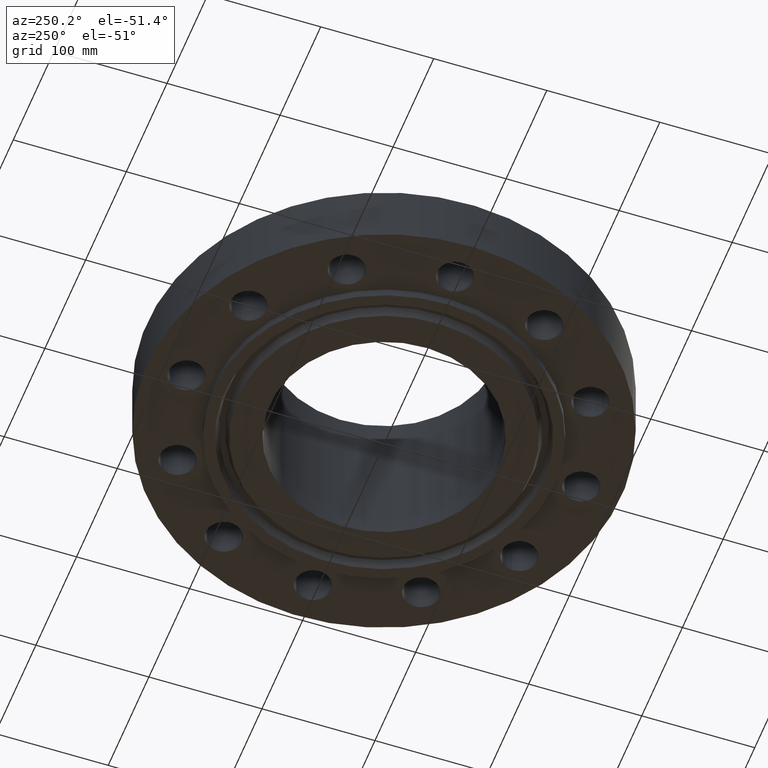
[diagram: clean part render]
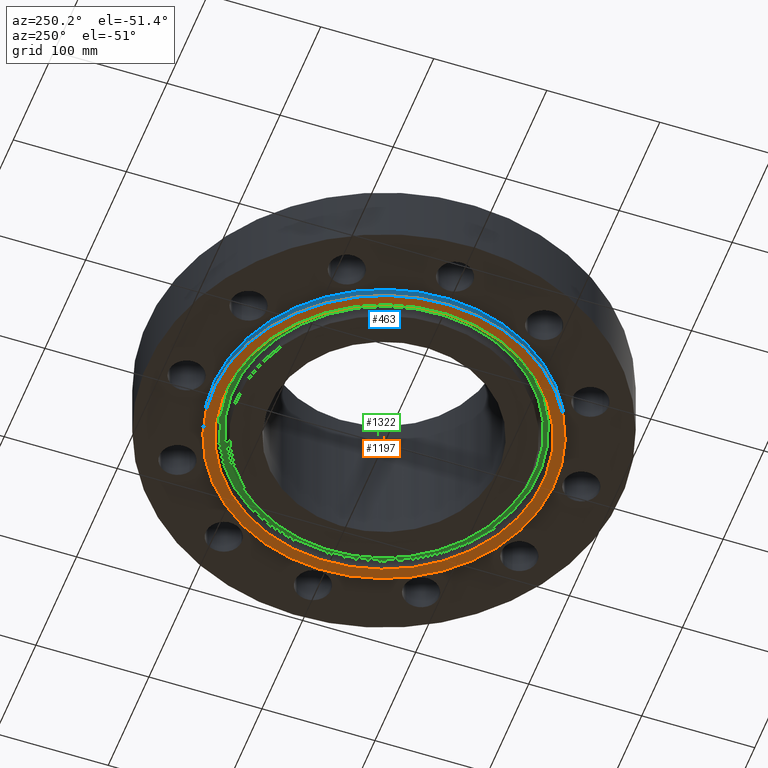
[diagram: same view with three faces highlighted in distinct colors, each labeled with its STEP entity id]
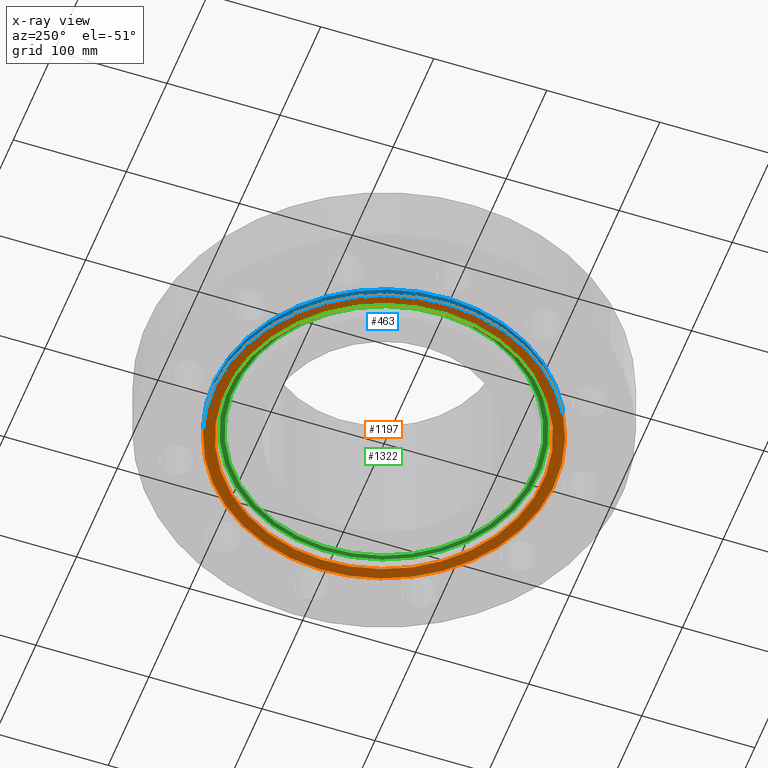
[diagram: x-ray of the same camera — body ghosted, the three highlighted faces saturated]
A machine part, auxiliary view with three faces highlighted in distinct colors.
The next image is the same camera in x-ray (body ghosted, the three faces saturated) — at least one of them is partly hidden behind the body in this view.
Their STEP definitions:

[orange] entity #1197 — the highlighted planar face has unit normal (0, 0, -1).
#431=AXIS2_PLACEMENT_3D('Circle Axis2P3D',#429,#430,$) ;
#466=AXIS2_PLACEMENT_3D('Circle Axis2P3D',#464,#465,$) ;
#1173=AXIS2_PLACEMENT_3D('Plane Axis2P3D',#1170,#1171,#1172) ;
#1181=AXIS2_PLACEMENT_3D('Circle Axis2P3D',#1179,#1180,$) ;
#1190=AXIS2_PLACEMENT_3D('Circle Axis2P3D',#1188,#1189,$) ;
#429=CARTESIAN_POINT('Axis2P3D Location',(0.,0.,-0.313000000001)) ;
#433=CARTESIAN_POINT('Vertex',(-2.84658913547,-5.21064646124,-0.313000000001)) ;
#435=CARTESIAN_POINT('Vertex',(2.84658913547,5.21064646124,-0.313000000001)) ;
#464=CARTESIAN_POINT('Axis2P3D Location',(0.,0.,-0.313000000001)) ;
#1170=CARTESIAN_POINT('Axis2P3D Location',(0.,3.99050000002,-0.313000000001)) ;
#1179=CARTESIAN_POINT('Axis2P3D Location',(-1.39870617276E-016,-1.1189649382E-015,-0.313000000001)) ;
#1183=CARTESIAN_POINT('Vertex',(2.65937346265,-4.86795047083,-0.313000000001)) ;
#1185=CARTESIAN_POINT('Vertex',(-2.65937346265,4.86795047083,-0.313000000001)) ;
#1188=CARTESIAN_POINT('Axis2P3D Location',(1.39870617276E-016,5.59482469102E-016,-0.313000000001)) ;
#430=DIRECTION('Axis2P3D Direction',(0.,0.,-0.0393700787402)) ;
#465=DIRECTION('Axis2P3D Direction',(0.,0.,-0.0393700787402)) ;
#1171=DIRECTION('Axis2P3D Direction',(0.,0.,-0.0393700787402)) ;
#1172=DIRECTION('Axis2P3D XDirection',(0.0393700787402,0.,0.)) ;
#1180=DIRECTION('Axis2P3D Direction',(0.,0.,-0.0393700787402)) ;
#1189=DIRECTION('Axis2P3D Direction',(0.,0.,-0.0393700787402)) ;
#1176=ORIENTED_EDGE('',*,*,#437,.T.) ;
#1177=ORIENTED_EDGE('',*,*,#468,.T.) ;
#1194=ORIENTED_EDGE('',*,*,#1187,.F.) ;
#1195=ORIENTED_EDGE('',*,*,#1192,.F.) ;
#1196=FACE_BOUND('',#1193,.T.) ;
#1197=ADVANCED_FACE('PartBody',(#1178,#1196),#1174,.T.) ;
#432=CIRCLE('generated circle',#431,5.93750000002) ;
#467=CIRCLE('generated circle',#466,5.93750000002) ;
#1182=CIRCLE('generated circle',#1181,5.54700000002) ;
#1191=CIRCLE('generated circle',#1190,5.54700000002) ;
#437=EDGE_CURVE('',#434,#436,#432,.T.) ;
#468=EDGE_CURVE('',#436,#434,#467,.T.) ;
#1187=EDGE_CURVE('',#1184,#1186,#1182,.T.) ;
#1192=EDGE_CURVE('',#1186,#1184,#1191,.T.) ;
#1175=EDGE_LOOP('',(#1176,#1177)) ;
#1193=EDGE_LOOP('',(#1194,#1195)) ;
#1178=FACE_OUTER_BOUND('',#1175,.T.) ;
#1174=PLANE('',#1173) ;
#434=VERTEX_POINT('',#433) ;
#436=VERTEX_POINT('',#435) ;
#1184=VERTEX_POINT('',#1183) ;
#1186=VERTEX_POINT('',#1185) ;

[blue] entity #463 — the highlighted cylindrical surface (partial cylindrical patch) has radius 150.812 mm, axis along (0, 0, -1).
#427=AXIS2_PLACEMENT_3D('Cylinder Axis2P3D',#424,#425,#426) ;
#431=AXIS2_PLACEMENT_3D('Circle Axis2P3D',#429,#430,$) ;
#447=AXIS2_PLACEMENT_3D('Circle Axis2P3D',#445,#446,$) ;
#424=CARTESIAN_POINT('Axis2P3D Location',(0.,0.,2.46850000001)) ;
#429=CARTESIAN_POINT('Axis2P3D Location',(0.,0.,-0.313000000001)) ;
#433=CARTESIAN_POINT('Vertex',(-2.84658913547,-5.21064646124,-0.313000000001)) ;
#435=CARTESIAN_POINT('Vertex',(2.84658913547,5.21064646124,-0.313000000001)) ;
#438=CARTESIAN_POINT('Line Origine',(-2.84658913547,-5.21064646124,-0.156500000001)) ;
#442=CARTESIAN_POINT('Vertex',(-2.84658913547,-5.21064646124,2.79741234551E-016)) ;
#445=CARTESIAN_POINT('Axis2P3D Location',(0.,0.,5.59482469102E-016)) ;
#449=CARTESIAN_POINT('Vertex',(2.84658913547,5.21064646124,2.79741234551E-016)) ;
#452=CARTESIAN_POINT('Line Origine',(2.84658913547,5.21064646124,-0.156500000001)) ;
#425=DIRECTION('Axis2P3D Direction',(0.,0.,-0.0393700787402)) ;
#426=DIRECTION('Axis2P3D XDirection',(0.0188750212049,0.0345504945626,0.)) ;
#430=DIRECTION('Axis2P3D Direction',(0.,0.,-0.0393700787402)) ;
#439=DIRECTION('Vector Direction',(0.,0.,-0.0393700787402)) ;
#446=DIRECTION('Axis2P3D Direction',(0.,0.,-0.0393700787402)) ;
#453=DIRECTION('Vector Direction',(0.,0.,-0.0393700787402)) ;
#440=VECTOR('Line Direction',#439,0.0393700787402) ;
#454=VECTOR('Line Direction',#453,0.0393700787402) ;
#458=ORIENTED_EDGE('',*,*,#437,.F.) ;
#459=ORIENTED_EDGE('',*,*,#444,.T.) ;
#460=ORIENTED_EDGE('',*,*,#451,.T.) ;
#461=ORIENTED_EDGE('',*,*,#456,.F.) ;
#463=ADVANCED_FACE('PartBody',(#462),#428,.T.) ;
#432=CIRCLE('generated circle',#431,5.93750000002) ;
#448=CIRCLE('generated circle',#447,5.93750000002) ;
#428=CYLINDRICAL_SURFACE('generated cylinder',#427,5.93750000002) ;
#437=EDGE_CURVE('',#434,#436,#432,.T.) ;
#444=EDGE_CURVE('',#434,#443,#441,.F.) ;
#451=EDGE_CURVE('',#443,#450,#448,.T.) ;
#456=EDGE_CURVE('',#436,#450,#455,.F.) ;
#457=EDGE_LOOP('',(#458,#459,#460,#461)) ;
#462=FACE_OUTER_BOUND('',#457,.T.) ;
#441=LINE('Line',#438,#440) ;
#455=LINE('Line',#452,#454) ;
#434=VERTEX_POINT('',#433) ;
#436=VERTEX_POINT('',#435) ;
#443=VERTEX_POINT('',#442) ;
#450=VERTEX_POINT('',#449) ;

[green] entity #1322 — the highlighted planar face has unit normal (0, 0, -1).
#484=AXIS2_PLACEMENT_3D('Plane Axis2P3D',#481,#482,#483) ;
#1244=AXIS2_PLACEMENT_3D('Circle Axis2P3D',#1242,#1243,$) ;
#1290=AXIS2_PLACEMENT_3D('Circle Axis2P3D',#1288,#1289,$) ;
#1306=AXIS2_PLACEMENT_3D('Circle Axis2P3D',#1304,#1305,$) ;
#1315=AXIS2_PLACEMENT_3D('Circle Axis2P3D',#1313,#1314,$) ;
#481=CARTESIAN_POINT('Axis2P3D Location',(0.,5.93750000002,0.)) ;
#1239=CARTESIAN_POINT('Vertex',(-2.58583961946,4.73334767375,-3.89015154298E-016)) ;
#1242=CARTESIAN_POINT('Axis2P3D Location',(0.,0.,-3.89015154298E-016)) ;
#1246=CARTESIAN_POINT('Vertex',(2.58583961946,-4.73334767375,-3.89015154298E-016)) ;
#1288=CARTESIAN_POINT('Axis2P3D Location',(0.,0.,-3.89015154298E-016)) ;
#1304=CARTESIAN_POINT('Axis2P3D Location',(0.,0.,0.)) ;
#1308=CARTESIAN_POINT('Vertex',(2.50805672823,-4.59096704638,2.27289753073E-016)) ;
#1310=CARTESIAN_POINT('Vertex',(-2.50805672823,4.59096704638,2.27289753073E-016)) ;
#1313=CARTESIAN_POINT('Axis2P3D Location',(0.,0.,0.)) ;
#482=DIRECTION('Axis2P3D Direction',(0.,0.,-0.0393700787402)) ;
#483=DIRECTION('Axis2P3D XDirection',(0.0393700787402,0.,0.)) ;
#1243=DIRECTION('Axis2P3D Direction',(0.,0.,0.0393700787402)) ;
#1289=DIRECTION('Axis2P3D Direction',(0.,0.,0.0393700787402)) ;
#1305=DIRECTION('Axis2P3D Direction',(0.,0.,-0.0393700787402)) ;
#1314=DIRECTION('Axis2P3D Direction',(0.,0.,-0.0393700787402)) ;
#1301=ORIENTED_EDGE('',*,*,#1248,.F.) ;
#1302=ORIENTED_EDGE('',*,*,#1292,.F.) ;
#1319=ORIENTED_EDGE('',*,*,#1312,.T.) ;
#1320=ORIENTED_EDGE('',*,*,#1317,.T.) ;
#1321=FACE_BOUND('',#1318,.T.) ;
#1322=ADVANCED_FACE('PartBody',(#1303,#1321),#485,.T.) ;
#1245=CIRCLE('generated circle',#1244,5.39362093015) ;
#1291=CIRCLE('generated circle',#1290,5.39362093015) ;
#1307=CIRCLE('generated circle',#1306,5.23137906989) ;
#1316=CIRCLE('generated circle',#1315,5.23137906989) ;
#1248=EDGE_CURVE('',#1240,#1247,#1245,.T.) ;
#1292=EDGE_CURVE('',#1247,#1240,#1291,.T.) ;
#1312=EDGE_CURVE('',#1309,#1311,#1307,.F.) ;
#1317=EDGE_CURVE('',#1311,#1309,#1316,.F.) ;
#1300=EDGE_LOOP('',(#1301,#1302)) ;
#1318=EDGE_LOOP('',(#1319,#1320)) ;
#1303=FACE_OUTER_BOUND('',#1300,.T.) ;
#485=PLANE('',#484) ;
#1240=VERTEX_POINT('',#1239) ;
#1247=VERTEX_POINT('',#1246) ;
#1309=VERTEX_POINT('',#1308) ;
#1311=VERTEX_POINT('',#1310) ;